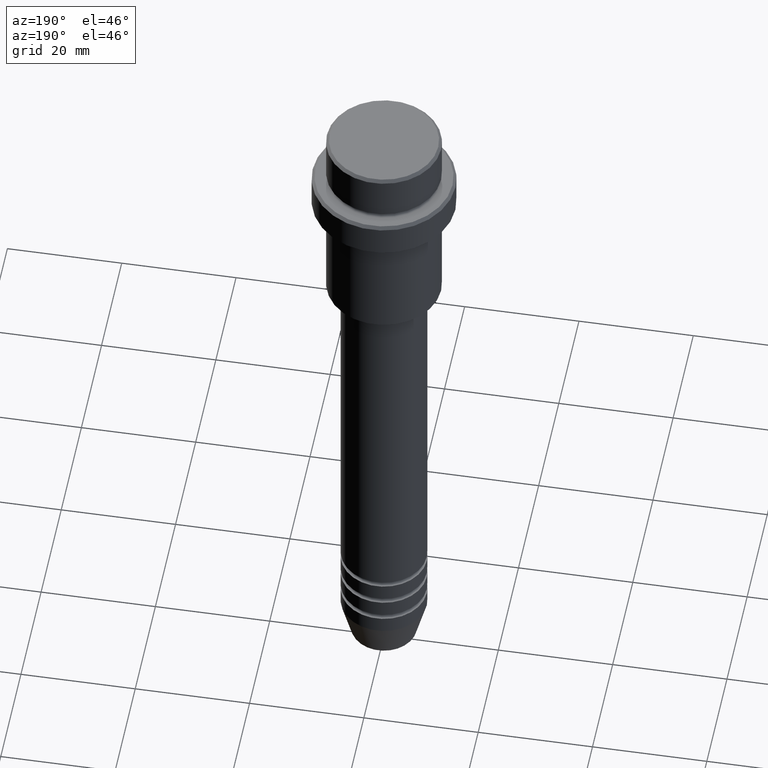
[diagram: clean part render]
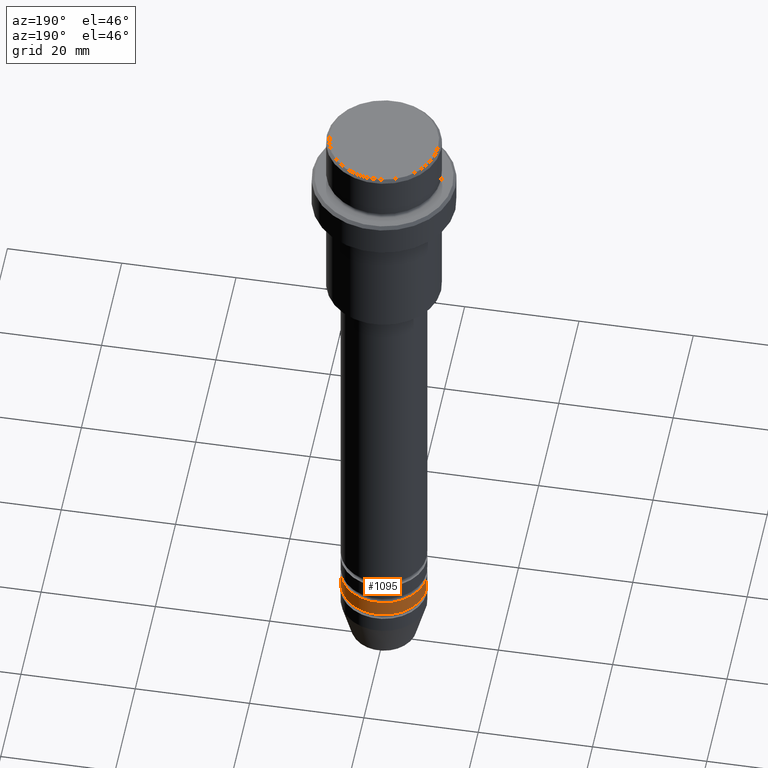
[diagram: same view with one face highlighted and labeled with its STEP entity id]
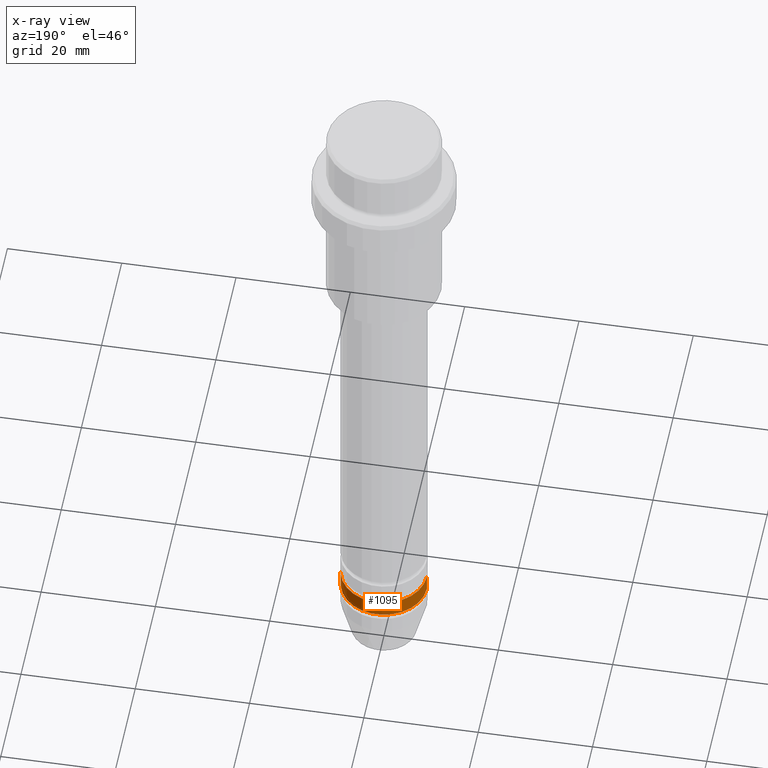
[diagram: x-ray of the same camera — body ghosted, the highlighted face saturated]
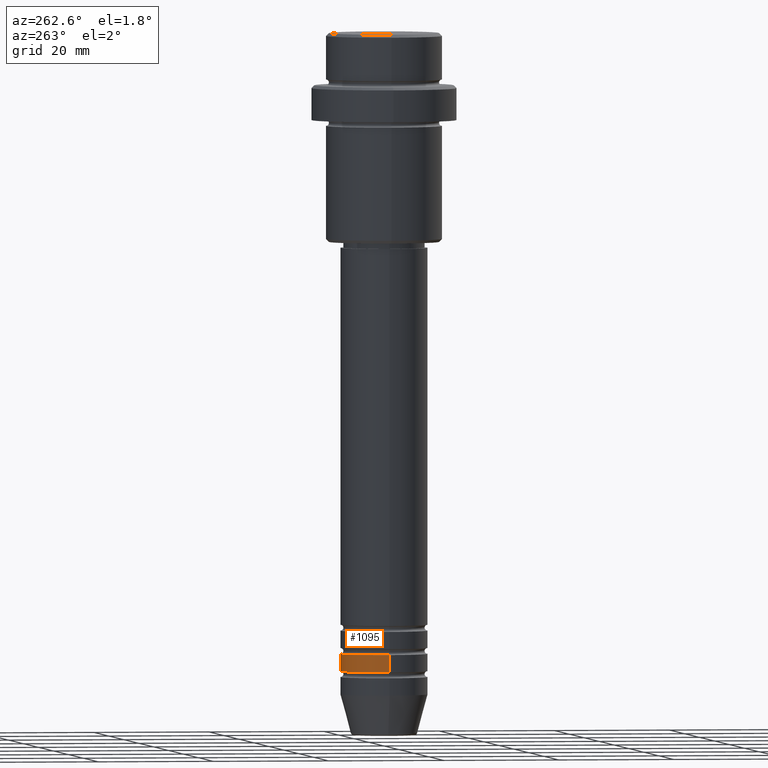
[diagram: same view with one face highlighted and labeled with its STEP entity id]
A machine part, auxiliary view. The second image highlights one B-rep face of the part: STEP entity #1095.
The next image is the same camera in x-ray: the body ghosted, the highlighted face saturated — about 0% of this face is hidden behind the body in this view.
A second angle (auxiliary view) of the same face is appended — the face is thin or edge-on in the first view.
In plain terms, the highlighted cylindrical surface (partial cylindrical patch) has radius 7.5 mm, axis along (-0, -0, 1).
Its self-contained STEP definition (entity closure, byte-faithful):
#10 = AXIS2_PLACEMENT_3D ( 'NONE', #1181, #1049, #499 ) ;
#112 = EDGE_LOOP ( 'NONE', ( #709, #257, #936, #1340 ) ) ;
#199 = DIRECTION ( 'NONE',  ( -0.000000000000000000, -0.000000000000000000, 1.000000000000000000 ) ) ;
#209 = CARTESIAN_POINT ( 'NONE',  ( -7.500000000000000000, 9.184850993605147944E-16, 0.000000000000000000 ) ) ;
#257 = ORIENTED_EDGE ( 'NONE', *, *, #556, .T. ) ;
#296 = CIRCLE ( 'NONE', #874, 7.500000000000000000 ) ;
#297 = VERTEX_POINT ( 'NONE', #1017 ) ;
#309 = DIRECTION ( 'NONE',  ( 1.000000000000000000, 0.000000000000000000, 0.000000000000000000 ) ) ;
#469 = CARTESIAN_POINT ( 'NONE',  ( -7.500000000000000000, 9.184850993605147944E-16, -106.9999999999999005 ) ) ;
#499 = DIRECTION ( 'NONE',  ( 1.000000000000000000, 0.000000000000000000, 0.000000000000000000 ) ) ;
#500 = AXIS2_PLACEMENT_3D ( 'NONE', #737, #199, #309 ) ;
#524 = CIRCLE ( 'NONE', #500, 7.500000000000000000 ) ;
#556 = EDGE_CURVE ( 'NONE', #297, #1389, #1416, .T. ) ;
#623 = DIRECTION ( 'NONE',  ( -0.000000000000000000, -0.000000000000000000, 1.000000000000000000 ) ) ;
#679 = VERTEX_POINT ( 'NONE', #1303 ) ;
#709 = ORIENTED_EDGE ( 'NONE', *, *, #905, .T. ) ;
#716 = EDGE_CURVE ( 'NONE', #679, #893, #732, .T. ) ;
#732 = LINE ( 'NONE', #860, #1124 ) ;
#737 = CARTESIAN_POINT ( 'NONE',  ( 0.000000000000000000, 0.000000000000000000, -109.9999999999999005 ) ) ;
#849 = DIRECTION ( 'NONE',  ( -0.000000000000000000, -0.000000000000000000, 1.000000000000000000 ) ) ;
#860 = CARTESIAN_POINT ( 'NONE',  ( 7.500000000000000000, 0.000000000000000000, 0.000000000000000000 ) ) ;
#874 = AXIS2_PLACEMENT_3D ( 'NONE', #949, #849, #1387 ) ;
#893 = VERTEX_POINT ( 'NONE', #959 ) ;
#905 = EDGE_CURVE ( 'NONE', #679, #297, #524, .T. ) ;
#936 = ORIENTED_EDGE ( 'NONE', *, *, #1299, .F. ) ;
#949 = CARTESIAN_POINT ( 'NONE',  ( 0.000000000000000000, 0.000000000000000000, -106.9999999999999005 ) ) ;
#959 = CARTESIAN_POINT ( 'NONE',  ( 7.500000000000000000, 0.000000000000000000, -106.9999999999999005 ) ) ;
#1017 = CARTESIAN_POINT ( 'NONE',  ( -7.500000000000000000, 9.184850993605147944E-16, -109.9999999999999005 ) ) ;
#1049 = DIRECTION ( 'NONE',  ( -0.000000000000000000, -0.000000000000000000, 1.000000000000000000 ) ) ;
#1063 = DIRECTION ( 'NONE',  ( -0.000000000000000000, -0.000000000000000000, 1.000000000000000000 ) ) ;
#1095 = ADVANCED_FACE ( 'NONE', ( #1403 ), #1190, .T. ) ;
#1124 = VECTOR ( 'NONE', #623, 1000.000000000000000 ) ;
#1181 = CARTESIAN_POINT ( 'NONE',  ( 0.000000000000000000, 0.000000000000000000, 0.000000000000000000 ) ) ;
#1190 = CYLINDRICAL_SURFACE ( 'NONE', #10, 7.500000000000000000 ) ;
#1255 = VECTOR ( 'NONE', #1063, 1000.000000000000000 ) ;
#1299 = EDGE_CURVE ( 'NONE', #893, #1389, #296, .T. ) ;
#1303 = CARTESIAN_POINT ( 'NONE',  ( 7.500000000000000000, 0.000000000000000000, -109.9999999999999005 ) ) ;
#1340 = ORIENTED_EDGE ( 'NONE', *, *, #716, .F. ) ;
#1387 = DIRECTION ( 'NONE',  ( 1.000000000000000000, 0.000000000000000000, 0.000000000000000000 ) ) ;
#1389 = VERTEX_POINT ( 'NONE', #469 ) ;
#1403 = FACE_OUTER_BOUND ( 'NONE', #112, .T. ) ;
#1416 = LINE ( 'NONE', #209, #1255 ) ;